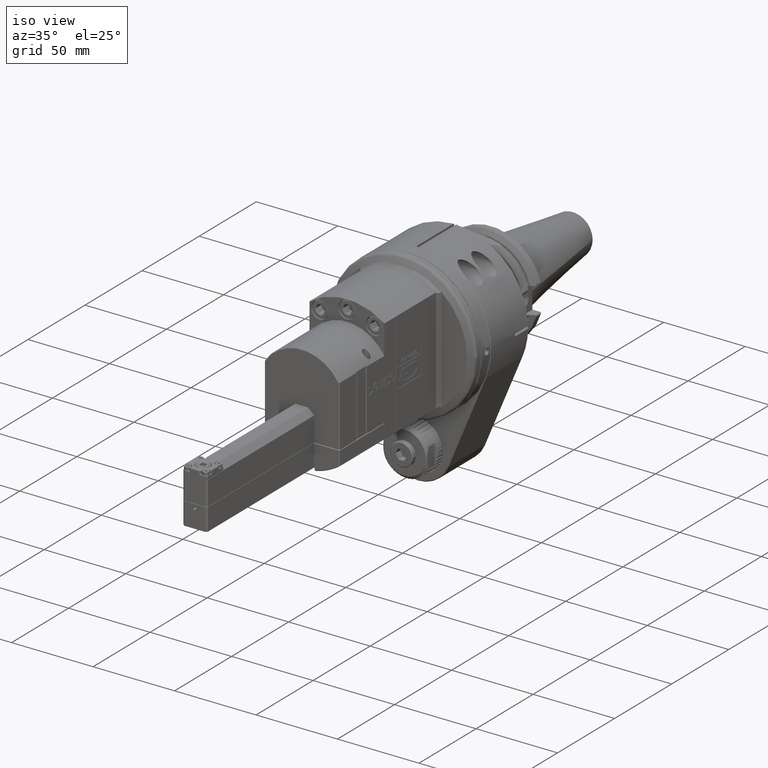
[diagram: clean part render]
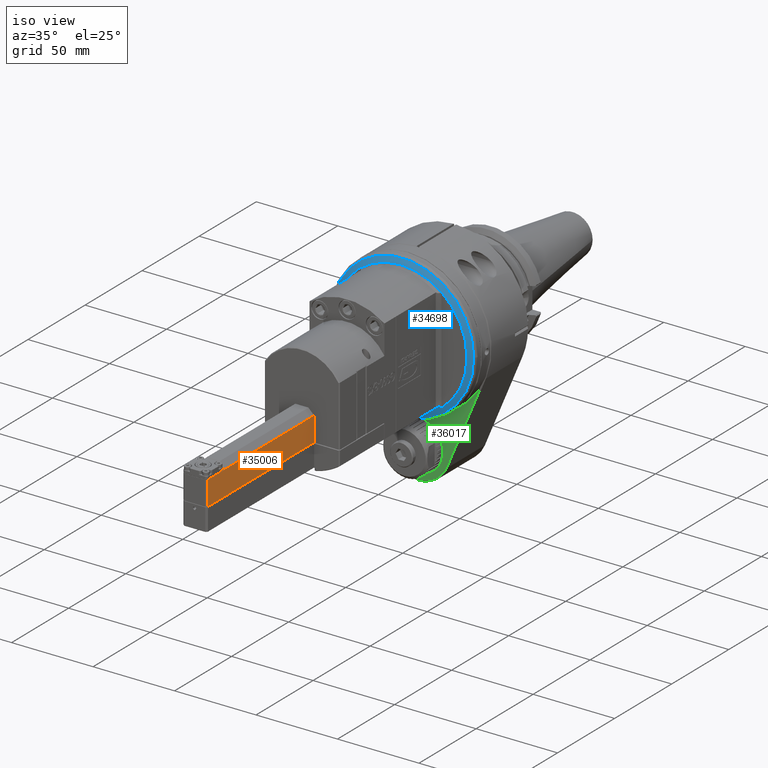
[diagram: same view with three faces highlighted in distinct colors, each labeled with its STEP entity id]
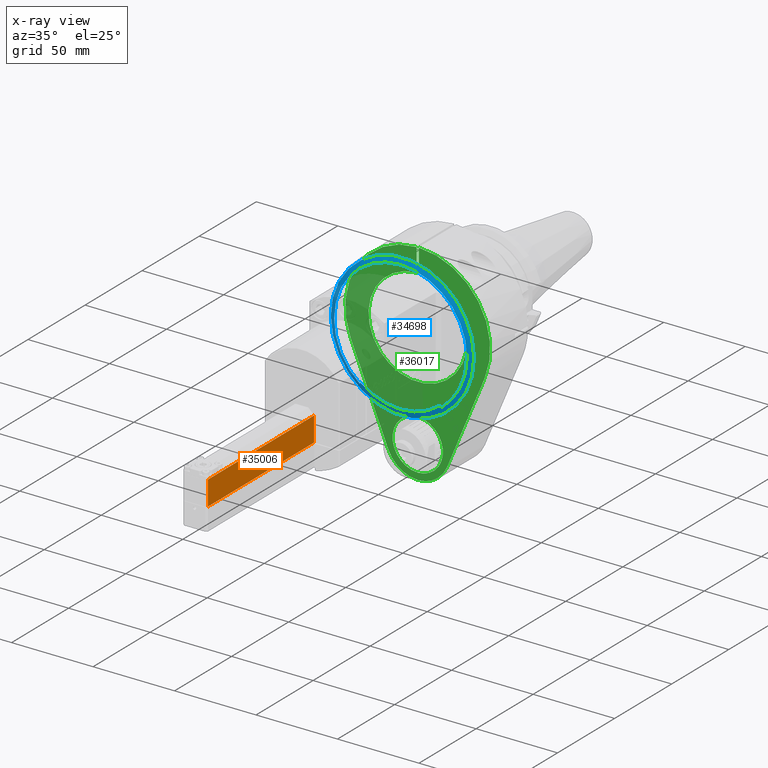
[diagram: x-ray of the same camera — body ghosted, the three highlighted faces saturated]
A machine part, iso view with three faces highlighted in distinct colors.
The next image is the same camera in x-ray (body ghosted, the three faces saturated) — at least one of them is partly hidden behind the body in this view.
Their STEP definitions:

[orange] entity #35006 — the highlighted planar face has unit normal (1, 0, -0).
#1828=LINE('',#51251,#4527);
#2646=LINE('',#60889,#5345);
#2659=LINE('',#60914,#5358);
#2660=LINE('',#60915,#5359);
#2661=LINE('',#60916,#5360);
#4527=VECTOR('',#40586,93.);
#5345=VECTOR('',#43782,14.5);
#5358=VECTOR('',#43797,78.5);
#5359=VECTOR('',#43798,15.);
#5360=VECTOR('',#43799,15.);
#8492=FACE_OUTER_BOUND('',#10680,.T.);
#10680=EDGE_LOOP('',(#26065,#26066,#26067,#26068,#26069));
#14071=VERTEX_POINT('',#51248);
#14072=VERTEX_POINT('',#51250);
#15061=VERTEX_POINT('',#60887);
#15062=VERTEX_POINT('',#60888);
#15073=VERTEX_POINT('',#60913);
#17564=EDGE_CURVE('',#14071,#14072,#1828,.T.);
#19121=EDGE_CURVE('',#15061,#15062,#2646,.T.);
#19134=EDGE_CURVE('',#15073,#15062,#2659,.T.);
#19135=EDGE_CURVE('',#14072,#15061,#2660,.T.);
#19136=EDGE_CURVE('',#15073,#14071,#2661,.T.);
#26065=ORIENTED_EDGE('',*,*,#19134,.T.);
#26066=ORIENTED_EDGE('',*,*,#19121,.F.);
#26067=ORIENTED_EDGE('',*,*,#19135,.F.);
#26068=ORIENTED_EDGE('',*,*,#17564,.F.);
#26069=ORIENTED_EDGE('',*,*,#19136,.F.);
#33671=PLANE('',#37814);
#35006=ADVANCED_FACE('',(#8492),#33671,.T.);
#37814=AXIS2_PLACEMENT_3D('',#60912,#43795,#43796);
#40586=DIRECTION('',(0.,1.,0.));
#43782=DIRECTION('',(0.,-1.,0.));
#43795=DIRECTION('center_axis',(-1.,0.,0.));
#43796=DIRECTION('ref_axis',(0.,1.,0.));
#43797=DIRECTION('',(0.,1.,0.));
#43798=DIRECTION('',(0.,0.,1.));
#43799=DIRECTION('',(0.,0.,-1.));
#51248=CARTESIAN_POINT('',(-7.5,126.5,-23.));
#51250=CARTESIAN_POINT('',(-7.5,219.5,-23.));
#51251=CARTESIAN_POINT('',(-7.5,126.5,-23.));
#60887=CARTESIAN_POINT('',(-7.5,219.5,-8.));
#60888=CARTESIAN_POINT('',(-7.5,205.,-8.));
#60889=CARTESIAN_POINT('',(-7.5,219.5,-8.));
#60912=CARTESIAN_POINT('Origin',(-7.5,126.5,28.));
#60913=CARTESIAN_POINT('',(-7.5,126.5,-8.));
#60914=CARTESIAN_POINT('',(-7.5,126.5,-8.));
#60915=CARTESIAN_POINT('',(-7.5,219.5,-23.));
#60916=CARTESIAN_POINT('',(-7.5,126.5,-8.));

[blue] entity #34698 — the highlighted conical surface has half-angle 64.699 deg.
#1420=CONICAL_SURFACE('',#37336,41.67737961689,1.1292039644876);
#2194=LINE('',#58538,#4893);
#2195=LINE('',#58542,#4894);
#2196=LINE('',#58546,#4895);
#4893=VECTOR('',#42376,41.67737961689);
#4894=VECTOR('',#42379,10.);
#4895=VECTOR('',#42382,10.);
#8184=FACE_OUTER_BOUND('',#10343,.T.);
#10343=EDGE_LOOP('',(#24558,#24559,#24560,#24561,#24562,#24563,#24564,#24565,
#24566,#24567,#24568,#24569,#24570));
#12631=CIRCLE('',#37334,43.85475923379);
#12632=CIRCLE('',#37335,43.85475923379);
#12633=CIRCLE('',#37337,40.76923076923);
#12634=CIRCLE('',#37338,40.64524076621);
#12635=CIRCLE('',#37339,40.76923076923);
#12636=CIRCLE('',#37340,2031.48814056482);
#12637=CIRCLE('',#37341,39.5);
#12638=CIRCLE('',#37342,2031.48810664162);
#12639=CIRCLE('',#37343,40.76923076923);
#14605=VERTEX_POINT('',#58531);
#14606=VERTEX_POINT('',#58533);
#14607=VERTEX_POINT('',#58537);
#14608=VERTEX_POINT('',#58539);
#14609=VERTEX_POINT('',#58541);
#14610=VERTEX_POINT('',#58543);
#14611=VERTEX_POINT('',#58545);
#14612=VERTEX_POINT('',#58547);
#14613=VERTEX_POINT('',#58549);
#14614=VERTEX_POINT('',#58551);
#14615=VERTEX_POINT('',#58553);
#18399=EDGE_CURVE('',#14605,#14606,#12631,.T.);
#18400=EDGE_CURVE('',#14606,#14605,#12632,.T.);
#18401=EDGE_CURVE('',#14606,#14607,#2194,.T.);
#18402=EDGE_CURVE('',#14607,#14608,#12633,.T.);
#18403=EDGE_CURVE('',#14608,#14609,#2195,.T.);
#18404=EDGE_CURVE('',#14609,#14610,#12634,.T.);
#18405=EDGE_CURVE('',#14610,#14611,#2196,.T.);
#18406=EDGE_CURVE('',#14611,#14612,#12635,.T.);
#18407=EDGE_CURVE('',#14612,#14613,#12636,.T.);
#18408=EDGE_CURVE('',#14614,#14613,#12637,.T.);
#18409=EDGE_CURVE('',#14614,#14615,#12638,.T.);
#18410=EDGE_CURVE('',#14615,#14607,#12639,.T.);
#24558=ORIENTED_EDGE('',*,*,#18399,.F.);
#24559=ORIENTED_EDGE('',*,*,#18400,.F.);
#24560=ORIENTED_EDGE('',*,*,#18401,.T.);
#24561=ORIENTED_EDGE('',*,*,#18402,.T.);
#24562=ORIENTED_EDGE('',*,*,#18403,.T.);
#24563=ORIENTED_EDGE('',*,*,#18404,.T.);
#24564=ORIENTED_EDGE('',*,*,#18405,.T.);
#24565=ORIENTED_EDGE('',*,*,#18406,.T.);
#24566=ORIENTED_EDGE('',*,*,#18407,.T.);
#24567=ORIENTED_EDGE('',*,*,#18408,.F.);
#24568=ORIENTED_EDGE('',*,*,#18409,.T.);
#24569=ORIENTED_EDGE('',*,*,#18410,.T.);
#24570=ORIENTED_EDGE('',*,*,#18401,.F.);
#34698=ADVANCED_FACE('',(#8184),#1420,.T.);
#37334=AXIS2_PLACEMENT_3D('',#58534,#42370,#42371);
#37335=AXIS2_PLACEMENT_3D('',#58535,#42372,#42373);
#37336=AXIS2_PLACEMENT_3D('',#58536,#42374,#42375);
#37337=AXIS2_PLACEMENT_3D('',#58540,#42377,#42378);
#37338=AXIS2_PLACEMENT_3D('',#58544,#42380,#42381);
#37339=AXIS2_PLACEMENT_3D('',#58548,#42383,#42384);
#37340=AXIS2_PLACEMENT_3D('',#58550,#42385,#42386);
#37341=AXIS2_PLACEMENT_3D('',#58552,#42387,#42388);
#37342=AXIS2_PLACEMENT_3D('',#58554,#42389,#42390);
#37343=AXIS2_PLACEMENT_3D('',#58555,#42391,#42392);
#42370=DIRECTION('center_axis',(0.,-1.,0.));
#42371=DIRECTION('ref_axis',(1.,0.,0.));
#42372=DIRECTION('center_axis',(0.,-1.,0.));
#42373=DIRECTION('ref_axis',(1.,0.,0.));
#42374=DIRECTION('center_axis',(0.,-1.,0.));
#42375=DIRECTION('ref_axis',(-1.,0.,0.));
#42376=DIRECTION('',(-0.904072266505302,0.427379616893421,-1.10716920737361E-16));
#42377=DIRECTION('center_axis',(0.,-1.,0.));
#42378=DIRECTION('ref_axis',(1.,0.,0.));
#42379=DIRECTION('',(-0.421942008724347,0.421942008724379,-0.802452417621941));
#42380=DIRECTION('center_axis',(0.,-1.,0.));
#42381=DIRECTION('ref_axis',(0.613636088109025,0.,0.789588976221333));
#42382=DIRECTION('',(-0.421942008724347,-0.421942008724379,0.802452417621941));
#42383=DIRECTION('center_axis',(0.,-1.,0.));
#42384=DIRECTION('ref_axis',(-1.,0.,0.));
#42385=DIRECTION('center_axis',(0.707106781179324,-0.707106781193771,7.71276430371951E-12));
#42386=DIRECTION('ref_axis',(0.567698581842393,0.567698581824451,-0.596185072245727));
#42387=DIRECTION('center_axis',(0.,1.,0.));
#42388=DIRECTION('ref_axis',(0.617721518987295,0.,-0.786396925845994));
#42389=DIRECTION('center_axis',(-0.707106781136231,-0.707106781236864,5.27651009936266E-11));
#42390=DIRECTION('ref_axis',(-0.567403231904355,0.567403231779091,-0.596747136558808));
#42391=DIRECTION('center_axis',(0.,-1.,0.));
#42392=DIRECTION('ref_axis',(1.,0.,0.));
#58531=CARTESIAN_POINT('',(-43.8541364785418,38.54138654403,0.233711735094697));
#58533=CARTESIAN_POINT('',(43.8547592337865,38.5413865440226,5.37065905230345E-15));
#58534=CARTESIAN_POINT('Origin',(0.,38.54138654403,0.));
#58535=CARTESIAN_POINT('Origin',(0.,38.54138654403,0.));
#58536=CARTESIAN_POINT('Origin',(0.,39.57069327201,0.));
#58537=CARTESIAN_POINT('',(40.76923076923,40.,4.99279079652373E-15));
#58538=CARTESIAN_POINT('',(41.67737961689,39.57069327201,5.10400695446735E-15));
#58539=CARTESIAN_POINT('',(25.,40.,32.20450554681));
#58540=CARTESIAN_POINT('Origin',(0.,40.,0.));
#58541=CARTESIAN_POINT('',(24.94138654403,40.05861345597,32.09303404486));
#58542=CARTESIAN_POINT('',(25.,40.,32.20450554681));
#58543=CARTESIAN_POINT('',(-24.94138654403,40.05861345597,32.09303404486));
#58544=CARTESIAN_POINT('Origin',(0.,40.05861345597,0.));
#58545=CARTESIAN_POINT('',(-25.,40.,32.20450554681));
#58546=CARTESIAN_POINT('',(-24.94138654403,40.05861345597,32.09303404486));
#58547=CARTESIAN_POINT('',(-25.,40.,-32.20450554681));
#58548=CARTESIAN_POINT('Origin',(0.,40.,0.));
#58549=CARTESIAN_POINT('',(-24.4,40.6,-31.06267857092));
#58550=CARTESIAN_POINT('Origin',(-1177.67293642829,-1112.67293639184,1180.08022527805));
#58551=CARTESIAN_POINT('',(24.4,40.6,-31.06267857092));
#58552=CARTESIAN_POINT('Origin',(0.,40.6,0.));
#58553=CARTESIAN_POINT('',(25.,40.,-32.20450554681));
#58554=CARTESIAN_POINT('Origin',(1177.67291728371,-1112.67291702924,1180.08020504485));
#58555=CARTESIAN_POINT('Origin',(0.,40.,0.));

[green] entity #36017 — the highlighted planar face has unit normal (0, 1, 0).
#3950=LINE('',#73608,#6649);
#3951=LINE('',#73612,#6650);
#3952=LINE('',#73616,#6651);
#3953=LINE('',#73619,#6652);
#6649=VECTOR('',#48614,10.);
#6650=VECTOR('',#48617,10.);
#6651=VECTOR('',#48620,10.);
#6652=VECTOR('',#48623,10.);
#7810=FACE_BOUND('',#11755,.T.);
#9503=FACE_OUTER_BOUND('',#11754,.T.);
#11754=EDGE_LOOP('',(#31470,#31471,#31472,#31473,#31474,#31475,#31476,#31477));
#11755=EDGE_LOOP('',(#31478));
#13593=CIRCLE('',#39575,15.44984742651);
#13594=CIRCLE('',#39577,44.49977273927);
#13595=CIRCLE('',#39578,30.19997087989);
#13596=CIRCLE('',#39579,44.49977552051);
#13597=CIRCLE('',#39580,19.49970659949);
#16854=VERTEX_POINT('',#73600);
#16855=VERTEX_POINT('',#73604);
#16856=VERTEX_POINT('',#73605);
#16857=VERTEX_POINT('',#73607);
#16858=VERTEX_POINT('',#73609);
#16859=VERTEX_POINT('',#73611);
#16860=VERTEX_POINT('',#73613);
#16861=VERTEX_POINT('',#73615);
#16862=VERTEX_POINT('',#73617);
#21841=EDGE_CURVE('',#16854,#16854,#13593,.T.);
#21842=EDGE_CURVE('',#16855,#16856,#13594,.T.);
#21843=EDGE_CURVE('',#16857,#16855,#3950,.T.);
#21844=EDGE_CURVE('',#16858,#16857,#13595,.T.);
#21845=EDGE_CURVE('',#16858,#16859,#3951,.T.);
#21846=EDGE_CURVE('',#16860,#16859,#13596,.T.);
#21847=EDGE_CURVE('',#16861,#16860,#3952,.T.);
#21848=EDGE_CURVE('',#16862,#16861,#13597,.T.);
#21849=EDGE_CURVE('',#16856,#16862,#3953,.T.);
#31470=ORIENTED_EDGE('',*,*,#21842,.F.);
#31471=ORIENTED_EDGE('',*,*,#21843,.F.);
#31472=ORIENTED_EDGE('',*,*,#21844,.F.);
#31473=ORIENTED_EDGE('',*,*,#21845,.T.);
#31474=ORIENTED_EDGE('',*,*,#21846,.F.);
#31475=ORIENTED_EDGE('',*,*,#21847,.F.);
#31476=ORIENTED_EDGE('',*,*,#21848,.F.);
#31477=ORIENTED_EDGE('',*,*,#21849,.F.);
#31478=ORIENTED_EDGE('',*,*,#21841,.F.);
#34115=PLANE('',#39576);
#36017=ADVANCED_FACE('',(#9503,#7810),#34115,.F.);
#39575=AXIS2_PLACEMENT_3D('',#73602,#48608,#48609);
#39576=AXIS2_PLACEMENT_3D('',#73603,#48610,#48611);
#39577=AXIS2_PLACEMENT_3D('',#73606,#48612,#48613);
#39578=AXIS2_PLACEMENT_3D('',#73610,#48615,#48616);
#39579=AXIS2_PLACEMENT_3D('',#73614,#48618,#48619);
#39580=AXIS2_PLACEMENT_3D('',#73618,#48621,#48622);
#48608=DIRECTION('center_axis',(0.,-1.,0.));
#48609=DIRECTION('ref_axis',(1.,0.,2.07876044143E-13));
#48610=DIRECTION('center_axis',(0.,1.,0.));
#48611=DIRECTION('ref_axis',(1.,0.,0.));
#48612=DIRECTION('center_axis',(0.,1.,0.));
#48613=DIRECTION('ref_axis',(0.0168540102287596,0.,0.999857961082077));
#48614=DIRECTION('',(0.,0.,1.));
#48615=DIRECTION('center_axis',(0.,-1.,0.));
#48616=DIRECTION('ref_axis',(0.0248344370860896,0.,-0.999691577805183));
#48617=DIRECTION('',(0.,0.,1.));
#48618=DIRECTION('center_axis',(0.,1.,0.));
#48619=DIRECTION('ref_axis',(-0.9230769227385,0.,-0.3846153854276));
#48620=DIRECTION('',(-0.384615384615375,0.,0.923076923076927));
#48621=DIRECTION('center_axis',(0.,1.,0.));
#48622=DIRECTION('ref_axis',(0.,0.,-1.));
#48623=DIRECTION('',(-0.384615384615375,0.,-0.923076923076927));
#73600=CARTESIAN_POINT('',(-2.91941740696807E-14,2.14247022900516E-12,-80.4498474265122));
#73602=CARTESIAN_POINT('Origin',(-3.10862346895E-14,0.,-65.));
#73603=CARTESIAN_POINT('Origin',(0.,0.,0.));
#73604=CARTESIAN_POINT('',(0.74999999934199,4.65637358269979E-10,44.4934520345325));
#73605=CARTESIAN_POINT('',(41.0768181729268,-7.709388682995E-13,-17.1153409460261));
#73606=CARTESIAN_POINT('Origin',(-8.393285966166E-13,-1.541877736599E-12,
3.170797058329E-13));
#73607=CARTESIAN_POINT('',(0.749999999758383,-7.02924266349585E-10,30.1906565218963));
#73608=CARTESIAN_POINT('',(0.75,0.,11.65449913669));
#73609=CARTESIAN_POINT('',(-0.75000000002888,3.39786545048983E-10,30.1906565197908));
#73610=CARTESIAN_POINT('Origin',(-6.394883621841E-14,-3.922195901396E-12,
-4.973799050321E-13));
#73611=CARTESIAN_POINT('',(-0.749999999348788,4.62076838982845E-10,44.4934548161502));
#73612=CARTESIAN_POINT('',(-0.75,0.,23.50149913669));
#73613=CARTESIAN_POINT('',(-41.0768191833316,-1.8328706648408E-7,-17.1153413653162));
#73614=CARTESIAN_POINT('Origin',(-4.583000545653E-13,-5.968558980385E-13,
3.19744331092E-14));
#73615=CARTESIAN_POINT('',(-18.0002498631843,-1.11983142885248E-5,-72.4990188746402));
#73616=CARTESIAN_POINT('',(-35.3076923076922,0.,-30.9615384615403));
#73617=CARTESIAN_POINT('',(18.0002372588659,9.56023600463482E-7,-72.4990531477556));
#73618=CARTESIAN_POINT('Origin',(-3.28625915289E-14,1.183053655041E-12,
-65.));
#73619=CARTESIAN_POINT('',(35.3076923076922,0.,-30.9615384615402));